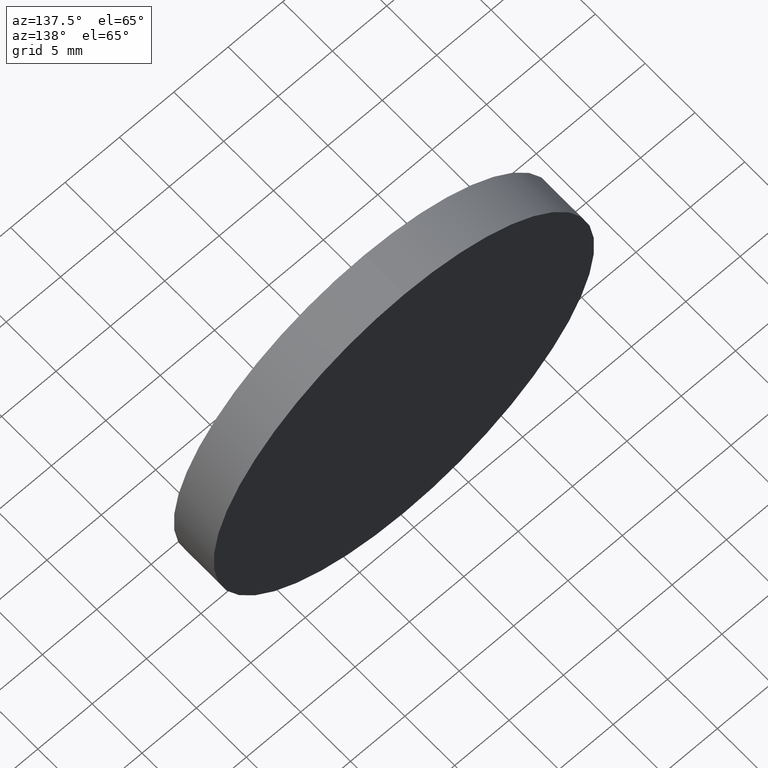
[diagram: clean part render]
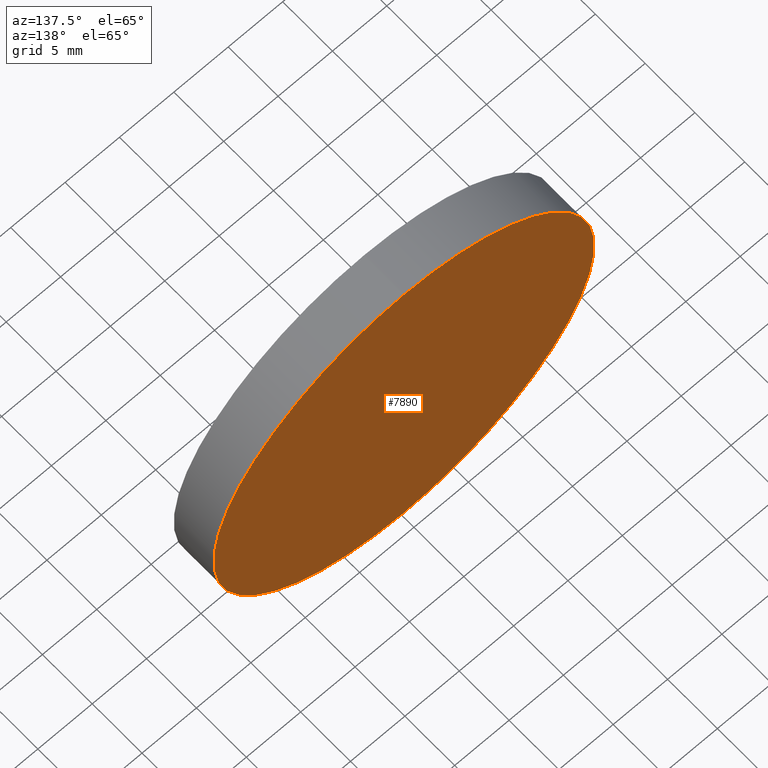
[diagram: same view with one face highlighted and labeled with its STEP entity id]
A machine part, auxiliary view. The second image highlights one B-rep face of the part: STEP entity #7890.
In plain terms, the highlighted planar face has unit normal (0, 1, 0).
Its self-contained STEP definition (entity closure, byte-faithful):
#4 = FACE_OUTER_BOUND ( 'NONE', #668, .T. ) ;
#635 = CIRCLE ( 'NONE', #2362, 17.50000000000000400 ) ;
#668 = EDGE_LOOP ( 'NONE', ( #8268, #12207 ) ) ;
#942 = CARTESIAN_POINT ( 'NONE',  ( 0.0000000000000000000, 4.000000000000000000, 0.0000000000000000000 ) ) ;
#2362 = AXIS2_PLACEMENT_3D ( 'NONE', #12390, #2379, #10265 ) ;
#2379 = DIRECTION ( 'NONE',  ( 0.0000000000000000000, 1.000000000000000000, 0.0000000000000000000 ) ) ;
#3386 = DIRECTION ( 'NONE',  ( 0.0000000000000000000, -0.0000000000000000000, 1.000000000000000000 ) ) ;
#4216 = VERTEX_POINT ( 'NONE', #12038 ) ;
#4417 = CARTESIAN_POINT ( 'NONE',  ( 0.0000000000000000000, 4.000000000000000000, 0.0000000000000000000 ) ) ;
#6251 = EDGE_CURVE ( 'NONE', #4216, #8918, #635, .T. ) ;
#6861 = CARTESIAN_POINT ( 'NONE',  ( 2.143131898507868600E-015, 4.000000000000000000, 17.50000000000000400 ) ) ;
#7887 = DIRECTION ( 'NONE',  ( 0.0000000000000000000, 1.000000000000000000, 0.0000000000000000000 ) ) ;
#7890 = ADVANCED_FACE ( 'NONE', ( #4 ), #8409, .T. ) ;
#7927 = DIRECTION ( 'NONE',  ( 0.0000000000000000000, 0.0000000000000000000, 1.000000000000000000 ) ) ;
#8268 = ORIENTED_EDGE ( 'NONE', *, *, #6251, .T. ) ;
#8409 = PLANE ( 'NONE',  #12830 ) ;
#8507 = EDGE_CURVE ( 'NONE', #8918, #4216, #10970, .T. ) ;
#8918 = VERTEX_POINT ( 'NONE', #6861 ) ;
#9414 = DIRECTION ( 'NONE',  ( 0.0000000000000000000, 1.000000000000000000, 0.0000000000000000000 ) ) ;
#9455 = AXIS2_PLACEMENT_3D ( 'NONE', #942, #7887, #7927 ) ;
#10265 = DIRECTION ( 'NONE',  ( 0.0000000000000000000, 0.0000000000000000000, 1.000000000000000000 ) ) ;
#10970 = CIRCLE ( 'NONE', #9455, 17.50000000000000400 ) ;
#12038 = CARTESIAN_POINT ( 'NONE',  ( 0.0000000000000000000, 4.000000000000000000, -17.50000000000000400 ) ) ;
#12207 = ORIENTED_EDGE ( 'NONE', *, *, #8507, .T. ) ;
#12390 = CARTESIAN_POINT ( 'NONE',  ( 0.0000000000000000000, 4.000000000000000000, 0.0000000000000000000 ) ) ;
#12830 = AXIS2_PLACEMENT_3D ( 'NONE', #4417, #9414, #3386 ) ;